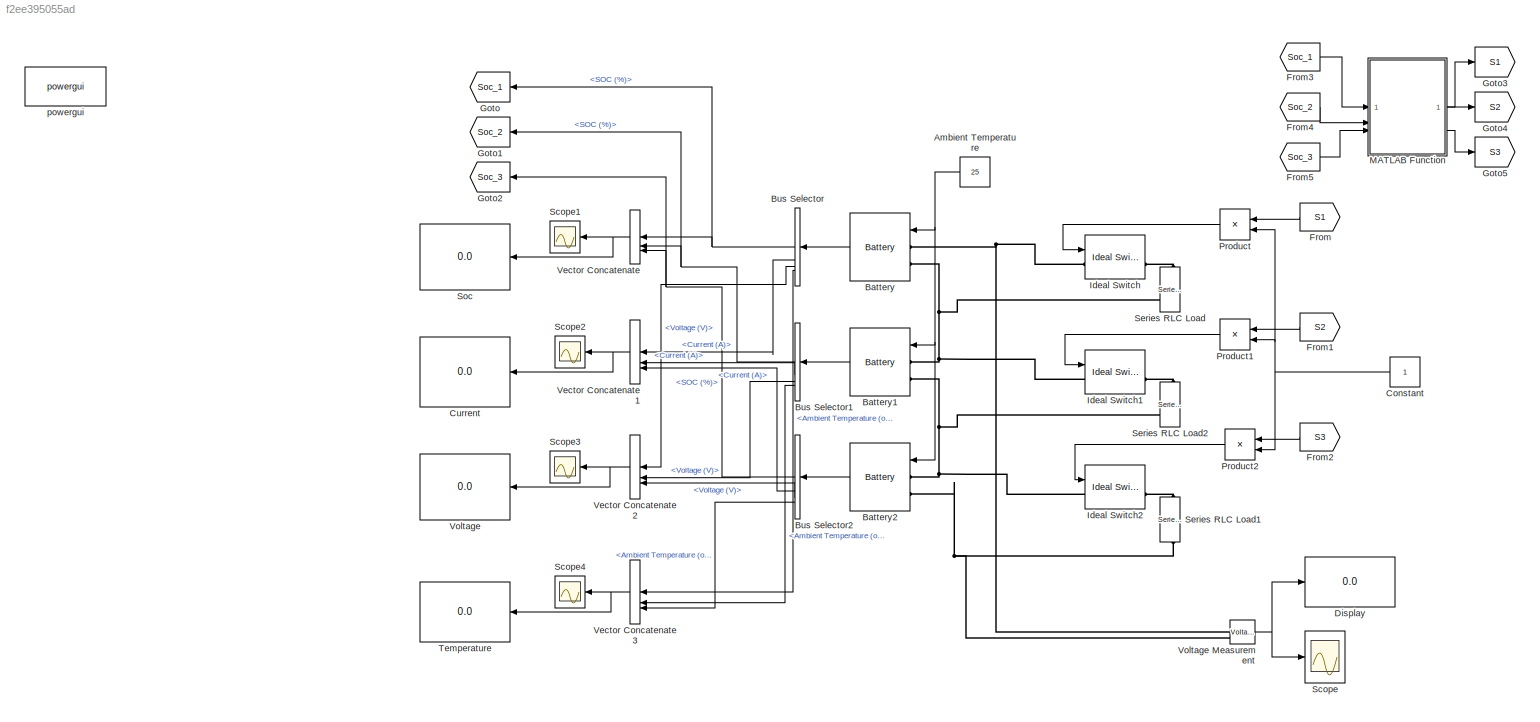
MODEL slx_f2ee395055ad
KIND model
CONFIG AbsTol = auto
CONFIG EnableMultiTasking = off
CONFIG FixedStep = auto
CONFIG MaxStep = auto
CONFIG MinStep = auto
CONFIG RelTol = 1e-3
CONFIG SampleTimeConstraint = Unconstrained
CONFIG SolverName = VariableStepAuto
CONFIG StartTime = 0.0
CONFIG StopTime = 10
BLOCK [Constant] Ambient Temperature
  NameLocation = top
  Value = 25
BLOCK [Reference] Battery  REF=spsBatteryLib/Battery
  LibrarySourceBlock = sps_lib/Sources/Battery
  SourceBlock = spsBatteryLib/Battery
  SourceType = Battery
BLOCK [Reference] Battery1  REF=spsBatteryLib/Battery
  LibrarySourceBlock = sps_lib/Sources/Battery
  SourceBlock = spsBatteryLib/Battery
  SourceType = Battery
BLOCK [Reference] Battery2  REF=spsBatteryLib/Battery
  LibrarySourceBlock = sps_lib/Sources/Battery
  SourceBlock = spsBatteryLib/Battery
  SourceType = Battery
BLOCK [BusSelector] Bus Selector
  NameLocation = top
  OutputSignals = SOC (%),Current (A),Voltage (V),Ambient Temperature (oC)
BLOCK [BusSelector] Bus Selector1
  NameLocation = top
  OutputSignals = SOC (%),Current (A),Voltage (V),Ambient Temperature (oC)
BLOCK [BusSelector] Bus Selector2
  NameLocation = top
  OutputSignals = SOC (%),Current (A),Voltage (V),Ambient Temperature (oC)
BLOCK [Constant] Constant
  NameLocation = top
BLOCK [Display] Current
  Decimation = 1
BLOCK [Display] Display
  Decimation = 1
BLOCK [From] From
  GotoTag = S1
  NameLocation = top
BLOCK [From] From1
  GotoTag = S2
  NameLocation = top
BLOCK [From] From2
  GotoTag = S3
  NameLocation = top
BLOCK [From] From3
  GotoTag = Soc_1
BLOCK [From] From4
  GotoTag = Soc_2
BLOCK [From] From5
  GotoTag = Soc_3
BLOCK [Goto] Goto
  GotoTag = Soc_1
BLOCK [Goto] Goto1
  GotoTag = Soc_2
BLOCK [Goto] Goto2
  GotoTag = Soc_3
BLOCK [Goto] Goto3
  GotoTag = S1
BLOCK [Goto] Goto4
  GotoTag = S2
BLOCK [Goto] Goto5
  GotoTag = S3
BLOCK [Reference] Ideal Switch  REF=spsIdealSwitchLib/Ideal Switch
  LibrarySourceBlock = sps_lib/Power Electronics/Ideal Switch
  SourceBlock = spsIdealSwitchLib/Ideal Switch
  SourceType = Ideal Switch
BLOCK [Reference] Ideal Switch1  REF=spsIdealSwitchLib/Ideal Switch
  LibrarySourceBlock = sps_lib/Power Electronics/Ideal Switch
  SourceBlock = spsIdealSwitchLib/Ideal Switch
  SourceType = Ideal Switch
BLOCK [Reference] Ideal Switch2  REF=spsIdealSwitchLib/Ideal Switch
  LibrarySourceBlock = sps_lib/Power Electronics/Ideal Switch
  SourceBlock = spsIdealSwitchLib/Ideal Switch
  SourceType = Ideal Switch
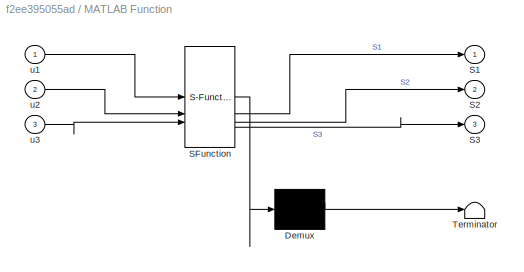
BLOCK [SubSystem] MATLAB Function
  ErrorFcn = Stateflow.Translate.translate
  LibrarySourceBlock = simulink/User-Defined\nFunctions/MATLAB Function
  PermitHierarchicalResolution = ExplicitOnly
  SFBlockType = MATLAB Function
  TreatAsAtomicUnit = on
BLOCK [Demux] MATLAB Function/ Demux 
  Outputs = 1
BLOCK [S-Function] MATLAB Function/ SFunction 
  EnableBusSupport = on
  FunctionName = sf_sfun
  PortCounts = [3 4]
  SFcnIsStateOwnerBlock = off
  SFunctionDeploymentMode = off
  Tag = Stateflow S-Function 2
BLOCK [Terminator] MATLAB Function/ Terminator 
BLOCK [Outport] MATLAB Function/S1
BLOCK [Outport] MATLAB Function/S2
  Port = 2
BLOCK [Outport] MATLAB Function/S3
  Port = 3
BLOCK [Inport] MATLAB Function/u1
BLOCK [Inport] MATLAB Function/u2
  Port = 2
BLOCK [Inport] MATLAB Function/u3
  Port = 3
BLOCK [Product] Product
  NameLocation = top
BLOCK [Product] Product1
  NameLocation = top
BLOCK [Product] Product2
  NameLocation = top
BLOCK [Scope] Scope
  Floating = off
  NumInputPorts = 1
  ScopeSpecificationString = Simulink.scopes.TimeScopeBlockCfg('CurrentConfiguration', extmgr.ConfigurationSet(extmgr.Configuration('Core','General UI',true),extmgr.Configuration('Core','Source UI',true),extmgr.Configuration('Sources','WiredSimulink',true),extmgr.Configuration('Visuals','Time Domain',true),extmgr.Configuration('Tools','Plot Navigation',true),extmgr.Configuration('Tools','Measurements',true)),'Version','2023a'...<+1ch>
BLOCK [Scope] Scope1
  Floating = off
  NumInputPorts = 1
  ScopeSpecificationString = Simulink.scopes.TimeScopeBlockCfg('CurrentConfiguration', extmgr.ConfigurationSet(extmgr.Configuration('Core','General UI',true),extmgr.Configuration('Core','Source UI',true),extmgr.Configuration('Sources','WiredSimulink',true,'DataLoggingVariableName','ScopeData1'),extmgr.Configuration('Visuals','Time Domain',true,'SerializedDisplays',{struct('MinYLimReal','56.81942','MaxYLimReal','104.79784','YL...<+1402ch>
BLOCK [Scope] Scope2
  Floating = off
  NumInputPorts = 1
  ScopeSpecificationString = Simulink.scopes.TimeScopeBlockCfg('CurrentConfiguration', extmgr.ConfigurationSet(extmgr.Configuration('Core','General UI',true),extmgr.Configuration('Core','Source UI',true),extmgr.Configuration('Sources','WiredSimulink',true,'DataLoggingVariableName','ScopeData2'),extmgr.Configuration('Visuals','Time Domain',true,'SerializedDisplays',{struct('MinYLimReal','-20.55446','MaxYLimReal','184.99053','Y...<+1443ch>
BLOCK [Scope] Scope3
  Floating = off
  NumInputPorts = 1
  ScopeSpecificationString = Simulink.scopes.TimeScopeBlockCfg('CurrentConfiguration', extmgr.ConfigurationSet(extmgr.Configuration('Core','General UI',true),extmgr.Configuration('Core','Source UI',true),extmgr.Configuration('Sources','WiredSimulink',true,'DataLoggingVariableName','ScopeData3'),extmgr.Configuration('Visuals','Time Domain',true,'SerializedDisplays',{struct('MinYLimReal','0.43933','MaxYLimReal','4.43846','YLabe...<+1402ch>
BLOCK [Scope] Scope4
  Floating = off
  NumInputPorts = 1
  ScopeSpecificationString = Simulink.scopes.TimeScopeBlockCfg('CurrentConfiguration', extmgr.ConfigurationSet(extmgr.Configuration('Core','General UI',true),extmgr.Configuration('Core','Source UI',true),extmgr.Configuration('Sources','WiredSimulink',true,'DataLoggingVariableName','ScopeData4'),extmgr.Configuration('Visuals','Time Domain',true,'SerializedDisplays',{struct('MinYLimReal','15.00000','MaxYLimReal','35.00000','YLa...<+1556ch>
BLOCK [Reference] Series RLC Load  REF=spsSeriesRLCLoadLib/Series RLC Load
  AttributesFormatString = \n
  LibrarySourceBlock = sps_lib/Passives/Series RLC Load
  NameLocation = left
  SourceBlock = spsSeriesRLCLoadLib/Series RLC Load
  SourceType = Series RLC Load
BLOCK [Reference] Series RLC Load1  REF=spsSeriesRLCLoadLib/Series RLC Load
  AttributesFormatString = \n
  LibrarySourceBlock = sps_lib/Passives/Series RLC Load
  NameLocation = left
  SourceBlock = spsSeriesRLCLoadLib/Series RLC Load
  SourceType = Series RLC Load
BLOCK [Reference] Series RLC Load2  REF=spsSeriesRLCLoadLib/Series RLC Load
  AttributesFormatString = \n
  LibrarySourceBlock = sps_lib/Passives/Series RLC Load
  NameLocation = left
  SourceBlock = spsSeriesRLCLoadLib/Series RLC Load
  SourceType = Series RLC Load
BLOCK [Display] Soc
  Decimation = 1
BLOCK [Display] Temperature
  Decimation = 1
BLOCK [Concatenate] Vector Concatenate
  NumInputs = 3
BLOCK [Concatenate] Vector Concatenate1
  NumInputs = 3
BLOCK [Concatenate] Vector Concatenate2
  NumInputs = 3
BLOCK [Concatenate] Vector Concatenate3
  NumInputs = 3
BLOCK [Display] Voltage
  Decimation = 1
BLOCK [Reference] Voltage Measurement  REF=spsVoltageMeasurementLib/Voltage Measurement
  LibrarySourceBlock = sps_lib/Sensors and Measurements/Voltage Measurement
  SourceBlock = spsVoltageMeasurementLib/Voltage Measurement
  SourceType = Voltage Measurement
  UserDataPersistent = on
BLOCK [Reference] powergui  REF=sps_lib/powergui
  Priority = 1
  SourceBlock = sps_lib/powergui
  SourceType = PSB option menu block
NET Ambient Temperature:1 -> Battery1:1, Battery2:1, Battery:1
LINE Battery1:1 -> Bus Selector1:1
LINE Battery2:1 -> Bus Selector2:1
LINE Battery:1 -> Bus Selector:1
NET Bus Selector1:1 -> Goto1:1, Vector Concatenate:2
LINE Bus Selector1:2 -> Vector Concatenate1:2
LINE Bus Selector1:3 -> Vector Concatenate2:2
LINE Bus Selector1:4 -> Vector Concatenate3:2
NET Bus Selector2:1 -> Goto2:1, Vector Concatenate:3
LINE Bus Selector2:2 -> Vector Concatenate1:3
LINE Bus Selector2:3 -> Vector Concatenate2:3
LINE Bus Selector2:4 -> Vector Concatenate3:3
NET Bus Selector:1 -> Goto:1, Vector Concatenate:1
LINE Bus Selector:2 -> Vector Concatenate1:1
LINE Bus Selector:3 -> Vector Concatenate2:1
LINE Bus Selector:4 -> Vector Concatenate3:1
NET Constant:1 -> Product1:2, Product2:2, Product:2
LINE From1:1 -> Product1:1
LINE From2:1 -> Product2:1
LINE From3:1 -> MATLAB Function:1
LINE From4:1 -> MATLAB Function:2
LINE From5:1 -> MATLAB Function:3
LINE From:1 -> Product:1
LINE MATLAB Function:1 -> Goto3:1
LINE MATLAB Function:2 -> Goto4:1
LINE MATLAB Function:3 -> Goto5:1
LINE Product1:1 -> Ideal Switch1:1
LINE Product2:1 -> Ideal Switch2:1
LINE Product:1 -> Ideal Switch:1
NET Vector Concatenate1:1 -> Current:1, Scope2:1
NET Vector Concatenate2:1 -> Scope3:1, Voltage:1
NET Vector Concatenate3:1 -> Scope4:1, Temperature:1
NET Vector Concatenate:1 -> Scope1:1, Soc:1
NET Voltage Measurement:1 -> Display:1, Scope:1
PNET net1: Battery1:LConn1 -- Battery:LConn2 -- Ideal Switch1:LConn1 -- Series RLC Load:RConn1
PNET net2: Battery1:LConn2 -- Battery2:LConn1 -- Ideal Switch2:LConn1 -- Series RLC Load2:RConn1
PNET net3: Battery2:LConn2 -- Series RLC Load1:RConn1 -- Voltage Measurement:LConn2
PNET net4: Battery:LConn1 -- Ideal Switch:LConn1 -- Voltage Measurement:LConn1
PLINE Ideal Switch1:RConn1 -- Series RLC Load2:LConn1
PLINE Ideal Switch2:RConn1 -- Series RLC Load1:LConn1
PLINE Ideal Switch:RConn1 -- Series RLC Load:LConn1
note: NET lines group one-source signal fan-out (src -> all destinations, sorted); 1:1 wires keep LINE; PNET lines group multi-terminal physical nets as a canonical sorted terminal list (undirected conserving connections); 2-terminal nets keep the pairwise PLINE form
CHART MATLAB Function states=1 transitions=1
  STATE_LABEL 'eML_blk_kernel()'
  STATE_LABEL 'SCRIPT:\nfunction [S1,S2,S3] = fcn(u1,u2,u3)\n\n% u1 = double(u1);\n% u2 = double(u2);\n% u3 = double(u3);\n\nif ((u1>u2) || (u1>u3)) \n    S1 = 1;\nelse\n    S1 = 0;\nend\n\nif ((u2>u1) || (u2>u3))\n    S2 = 1;\nelse\n    S2 = 0;\nend\n\n    if ((u3>u1) || (u3>u2))\n        S3 = 1;\n    else\n        S3 = 0;\n    end'
CHART  states=0 transitions=0
